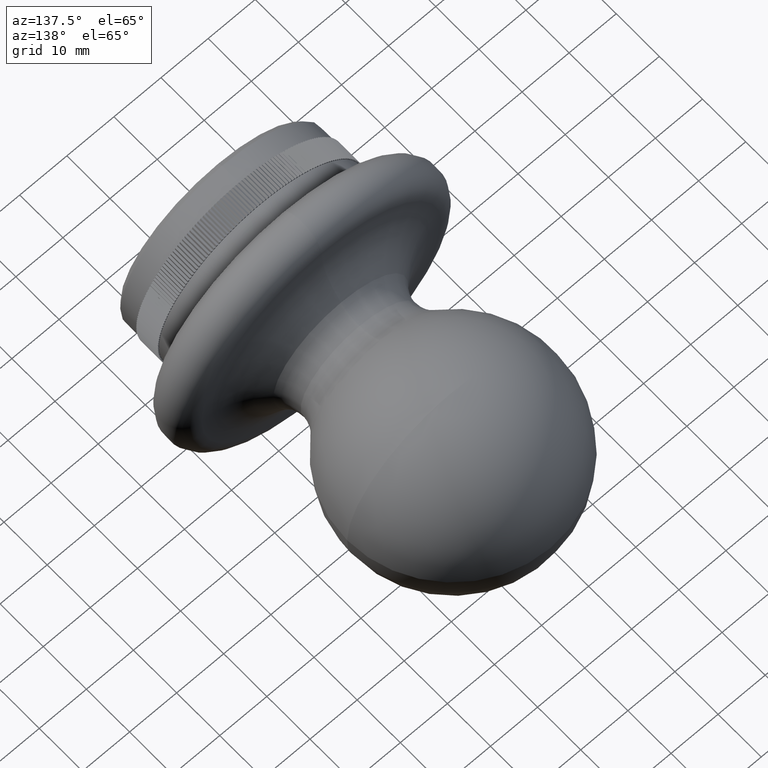
[diagram: clean part render]
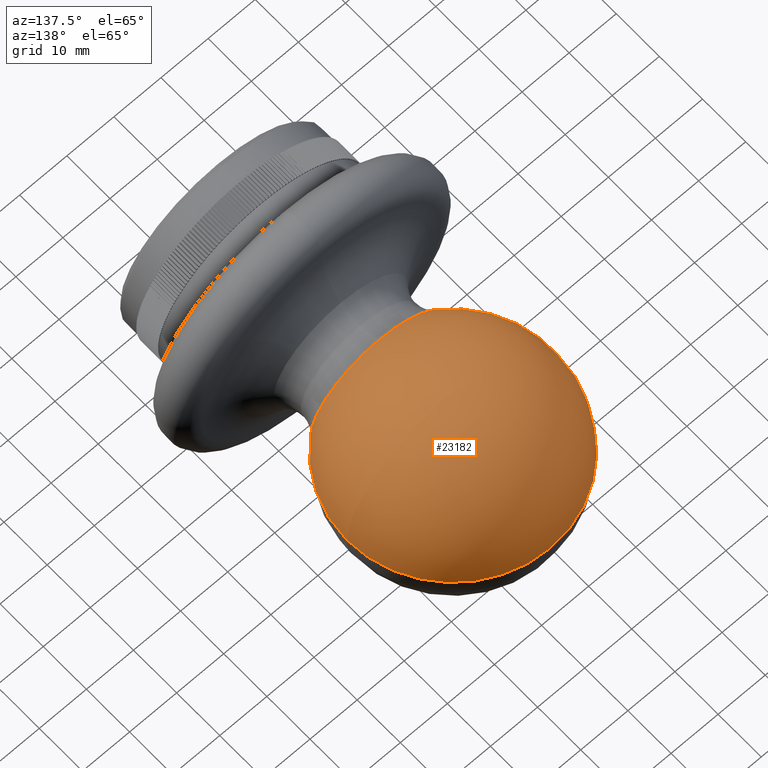
[diagram: same view with one face highlighted and labeled with its STEP entity id]
A machine part, auxiliary view. The second image highlights one B-rep face of the part: STEP entity #23182.
In plain terms, the highlighted spherical surface has radius 22.5 mm.
Its self-contained STEP definition (entity closure, byte-faithful):
#510 = CARTESIAN_POINT ( 'NONE',  ( 14.60526315789473983, 22.38461837735884785, 0.000000000000000000 ) ) ;
#665 = DIRECTION ( 'NONE',  ( 0.000000000000000000, 0.000000000000000000, -1.000000000000000000 ) ) ;
#1366 = VERTEX_POINT ( 'NONE', #31679 ) ;
#3373 = DIRECTION ( 'NONE',  ( 1.000000000000000000, 0.000000000000000000, 0.000000000000000000 ) ) ;
#3734 = EDGE_CURVE ( 'NONE', #15051, #22559, #29326, .T. ) ;
#4583 = ORIENTED_EDGE ( 'NONE', *, *, #34481, .F. ) ;
#5198 = FACE_OUTER_BOUND ( 'NONE', #17105, .T. ) ;
#9403 = DIRECTION ( 'NONE',  ( 0.000000000000000000, 0.000000000000000000, 1.000000000000000000 ) ) ;
#11777 = CARTESIAN_POINT ( 'NONE',  ( 1.788628877702055915E-15, 22.38461837735884785, 14.60526315789474339 ) ) ;
#12059 = CARTESIAN_POINT ( 'NONE',  ( 0.000000000000000000, 39.50000000000000000, 0.000000000000000000 ) ) ;
#13054 = DIRECTION ( 'NONE',  ( 0.000000000000000000, 0.000000000000000000, -1.000000000000000000 ) ) ;
#13176 = CARTESIAN_POINT ( 'NONE',  ( 0.000000000000000000, 39.50000000000000000, 0.000000000000000000 ) ) ;
#15051 = VERTEX_POINT ( 'NONE', #510 ) ;
#15497 = CARTESIAN_POINT ( 'NONE',  ( 0.000000000000000000, 22.38461837735884785, 0.000000000000000000 ) ) ;
#15765 = AXIS2_PLACEMENT_3D ( 'NONE', #12059, #33088, #21259 ) ;
#17043 = DIRECTION ( 'NONE',  ( -0.000000000000000000, -1.000000000000000000, -0.000000000000000000 ) ) ;
#17105 = EDGE_LOOP ( 'NONE', ( #32751, #17249, #4583, #20453 ) ) ;
#17116 = EDGE_CURVE ( 'NONE', #1366, #26032, #22499, .T. ) ;
#17249 = ORIENTED_EDGE ( 'NONE', *, *, #17116, .T. ) ;
#19027 = DIRECTION ( 'NONE',  ( -1.000000000000000000, 0.000000000000000000, 0.000000000000000000 ) ) ;
#20000 = SPHERICAL_SURFACE ( 'NONE', #20174, 22.50000000000000000 ) ;
#20174 = AXIS2_PLACEMENT_3D ( 'NONE', #30277, #9403, #3373 ) ;
#20453 = ORIENTED_EDGE ( 'NONE', *, *, #3734, .F. ) ;
#21259 = DIRECTION ( 'NONE',  ( 1.000000000000000000, 0.000000000000000000, -1.224646799147353207E-16 ) ) ;
#21303 = CIRCLE ( 'NONE', #22769, 22.50000000000000000 ) ;
#22499 = CIRCLE ( 'NONE', #15765, 22.50000000000000000 ) ;
#22559 = VERTEX_POINT ( 'NONE', #11777 ) ;
#22769 = AXIS2_PLACEMENT_3D ( 'NONE', #13176, #13054, #19027 ) ;
#23182 = ADVANCED_FACE ( 'NONE', ( #5198 ), #20000, .T. ) ;
#26032 = VERTEX_POINT ( 'NONE', #27493 ) ;
#27150 = AXIS2_PLACEMENT_3D ( 'NONE', #29483, #17043, #37804 ) ;
#27493 = CARTESIAN_POINT ( 'NONE',  ( -14.60526315789473983, 22.38461837735884785, 1.788628877702055520E-15 ) ) ;
#27541 = EDGE_CURVE ( 'NONE', #1366, #15051, #21303, .T. ) ;
#29326 = CIRCLE ( 'NONE', #30655, 14.60526315789473983 ) ;
#29483 = CARTESIAN_POINT ( 'NONE',  ( 0.000000000000000000, 22.38461837735884785, 0.000000000000000000 ) ) ;
#30277 = CARTESIAN_POINT ( 'NONE',  ( 0.000000000000000000, 39.50000000000000000, 0.000000000000000000 ) ) ;
#30655 = AXIS2_PLACEMENT_3D ( 'NONE', #15497, #36150, #665 ) ;
#31679 = CARTESIAN_POINT ( 'NONE',  ( 1.377727649040772389E-15, 62.00000000000000000, 0.000000000000000000 ) ) ;
#32479 = CIRCLE ( 'NONE', #27150, 14.60526315789473983 ) ;
#32751 = ORIENTED_EDGE ( 'NONE', *, *, #27541, .F. ) ;
#33088 = DIRECTION ( 'NONE',  ( 1.224646799147353207E-16, -0.000000000000000000, 1.000000000000000000 ) ) ;
#34481 = EDGE_CURVE ( 'NONE', #22559, #26032, #32479, .T. ) ;
#36150 = DIRECTION ( 'NONE',  ( -0.000000000000000000, -1.000000000000000000, -0.000000000000000000 ) ) ;
#37804 = DIRECTION ( 'NONE',  ( 0.000000000000000000, 0.000000000000000000, -1.000000000000000000 ) ) ;